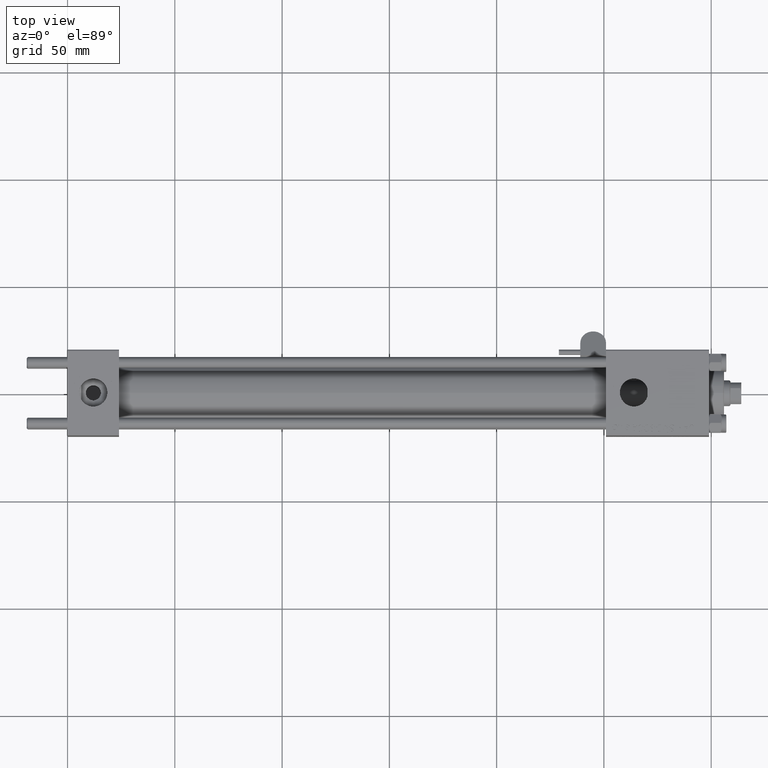
[diagram: clean part render]
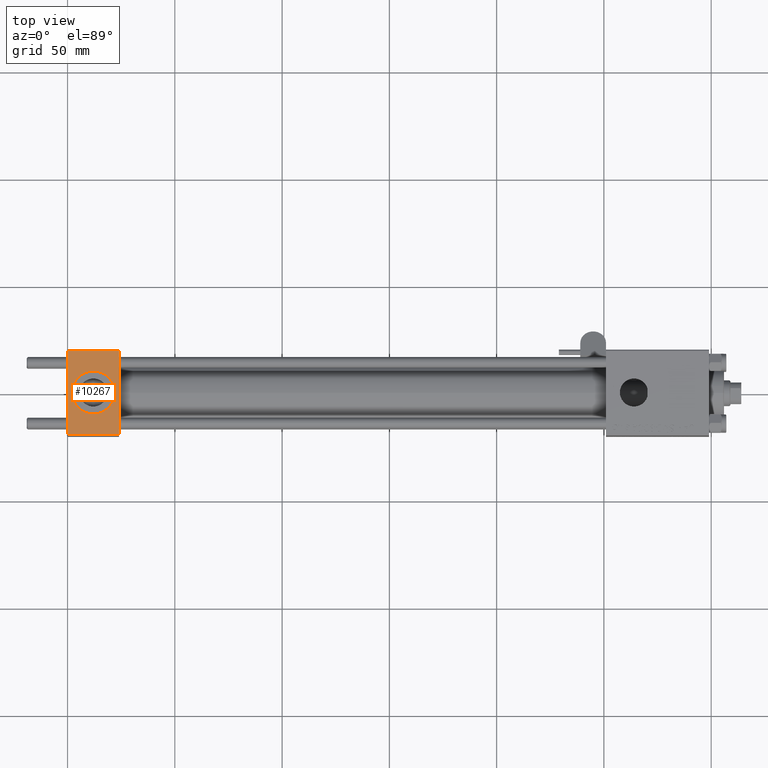
[diagram: same view with one face highlighted and labeled with its STEP entity id]
A machine part, top view. The second image highlights one B-rep face of the part: STEP entity #10267.
In plain terms, the highlighted planar face has unit normal (0, 0, -1).
Its self-contained STEP definition (entity closure, byte-faithful):
#1080 = VERTEX_POINT ( 'NONE', #30659 ) ;
#1938 = EDGE_CURVE ( 'NONE', #38335, #1080, #18654, .T. ) ;
#3097 = PLANE ( 'NONE',  #6675 ) ;
#3263 = DIRECTION ( 'NONE',  ( 0.000000000000000000, 0.000000000000000000, 1.000000000000000000 ) ) ;
#3622 = FACE_BOUND ( 'NONE', #40432, .T. ) ;
#5317 = CARTESIAN_POINT ( 'NONE',  ( 22.00000000000000000, 1.540743955509788682E-30, 19.99999999999999645 ) ) ;
#6675 = AXIS2_PLACEMENT_3D ( 'NONE', #7614, #51971, #19123 ) ;
#6738 = DIRECTION ( 'NONE',  ( 1.000000000000000000, 0.000000000000000000, 0.000000000000000000 ) ) ;
#7614 = CARTESIAN_POINT ( 'NONE',  ( 24.00000000000000000, 20.00000000000000000, 20.00000000000000000 ) ) ;
#9845 = DIRECTION ( 'NONE',  ( 1.000000000000000000, 0.000000000000000000, 0.000000000000000000 ) ) ;
#10267 = ADVANCED_FACE ( 'NONE', ( #3622, #19913 ), #3097, .F. ) ;
#10492 = VERTEX_POINT ( 'NONE', #20438 ) ;
#10626 = DIRECTION ( 'NONE',  ( -1.000000000000000000, 0.000000000000000000, 0.000000000000000000 ) ) ;
#11884 = CARTESIAN_POINT ( 'NONE',  ( 0.000000000000000000, 20.00000000000000000, 20.00000000000000000 ) ) ;
#12070 = ORIENTED_EDGE ( 'NONE', *, *, #38976, .T. ) ;
#12072 = DIRECTION ( 'NONE',  ( 0.000000000000000000, -1.000000000000000000, -2.602085213965210149E-16 ) ) ;
#13521 = VERTEX_POINT ( 'NONE', #39172 ) ;
#13561 = DIRECTION ( 'NONE',  ( 0.000000000000000000, 0.000000000000000000, 1.000000000000000000 ) ) ;
#14645 = LINE ( 'NONE', #30918, #30883 ) ;
#14820 = EDGE_CURVE ( 'NONE', #10492, #1080, #40632, .T. ) ;
#14943 = ORIENTED_EDGE ( 'NONE', *, *, #1938, .T. ) ;
#18237 = ORIENTED_EDGE ( 'NONE', *, *, #49263, .T. ) ;
#18654 = LINE ( 'NONE', #34936, #22717 ) ;
#18882 = ORIENTED_EDGE ( 'NONE', *, *, #28789, .F. ) ;
#19123 = DIRECTION ( 'NONE',  ( 0.000000000000000000, 1.000000000000000000, 2.602085213965210149E-16 ) ) ;
#19898 = DIRECTION ( 'NONE',  ( 0.000000000000000000, -1.000000000000000000, -2.602085213965210149E-16 ) ) ;
#19913 = FACE_OUTER_BOUND ( 'NONE', #34327, .T. ) ;
#20438 = CARTESIAN_POINT ( 'NONE',  ( 24.00000000000000000, 19.50000000000000000, 20.00000000000000000 ) ) ;
#21126 = VERTEX_POINT ( 'NONE', #41250 ) ;
#22717 = VECTOR ( 'NONE', #9845, 1000.000000000000000 ) ;
#26889 = CARTESIAN_POINT ( 'NONE',  ( 12.00000000000000000, 1.540743955509788682E-30, 19.99999999999999645 ) ) ;
#27105 = CARTESIAN_POINT ( 'NONE',  ( 0.000000000000000000, -19.49999999999999289, 19.99999999999998934 ) ) ;
#27288 = CARTESIAN_POINT ( 'NONE',  ( 24.00000000000000000, 20.00000000000000000, 20.00000000000000000 ) ) ;
#27342 = AXIS2_PLACEMENT_3D ( 'NONE', #52406, #3263, #6738 ) ;
#28102 = AXIS2_PLACEMENT_3D ( 'NONE', #26889, #13561, #43171 ) ;
#28789 = EDGE_CURVE ( 'NONE', #13521, #37535, #51147, .T. ) ;
#30589 = EDGE_CURVE ( 'NONE', #37535, #13521, #46940, .T. ) ;
#30659 = CARTESIAN_POINT ( 'NONE',  ( 24.00000000000000000, -19.49999999999999289, 19.99999999999998934 ) ) ;
#30883 = VECTOR ( 'NONE', #10626, 1000.000000000000000 ) ;
#30918 = CARTESIAN_POINT ( 'NONE',  ( 0.000000000000000000, 19.50000000000000000, 20.00000000000000000 ) ) ;
#34327 = EDGE_LOOP ( 'NONE', ( #18237, #14943, #47060, #12070 ) ) ;
#34936 = CARTESIAN_POINT ( 'NONE',  ( 24.00000000000000000, -19.49999999999999289, 19.99999999999998934 ) ) ;
#35920 = LINE ( 'NONE', #11884, #40519 ) ;
#36689 = VECTOR ( 'NONE', #12072, 1000.000000000000000 ) ;
#37535 = VERTEX_POINT ( 'NONE', #5317 ) ;
#38272 = ORIENTED_EDGE ( 'NONE', *, *, #30589, .F. ) ;
#38335 = VERTEX_POINT ( 'NONE', #27105 ) ;
#38976 = EDGE_CURVE ( 'NONE', #10492, #21126, #14645, .T. ) ;
#39172 = CARTESIAN_POINT ( 'NONE',  ( 2.000000000000003553, 1.224646799147354440E-15, 19.99999999999999645 ) ) ;
#40432 = EDGE_LOOP ( 'NONE', ( #38272, #18882 ) ) ;
#40519 = VECTOR ( 'NONE', #19898, 1000.000000000000000 ) ;
#40632 = LINE ( 'NONE', #27288, #36689 ) ;
#41250 = CARTESIAN_POINT ( 'NONE',  ( 0.000000000000000000, 19.50000000000000000, 20.00000000000000000 ) ) ;
#43171 = DIRECTION ( 'NONE',  ( 1.000000000000000000, 0.000000000000000000, 0.000000000000000000 ) ) ;
#46940 = CIRCLE ( 'NONE', #27342, 9.999999999999998224 ) ;
#47060 = ORIENTED_EDGE ( 'NONE', *, *, #14820, .F. ) ;
#49263 = EDGE_CURVE ( 'NONE', #21126, #38335, #35920, .T. ) ;
#51147 = CIRCLE ( 'NONE', #28102, 9.999999999999998224 ) ;
#51971 = DIRECTION ( 'NONE',  ( 0.000000000000000000, 2.602085213965210149E-16, -1.000000000000000000 ) ) ;
#52406 = CARTESIAN_POINT ( 'NONE',  ( 12.00000000000000000, 1.540743955509788682E-30, 19.99999999999999645 ) ) ;